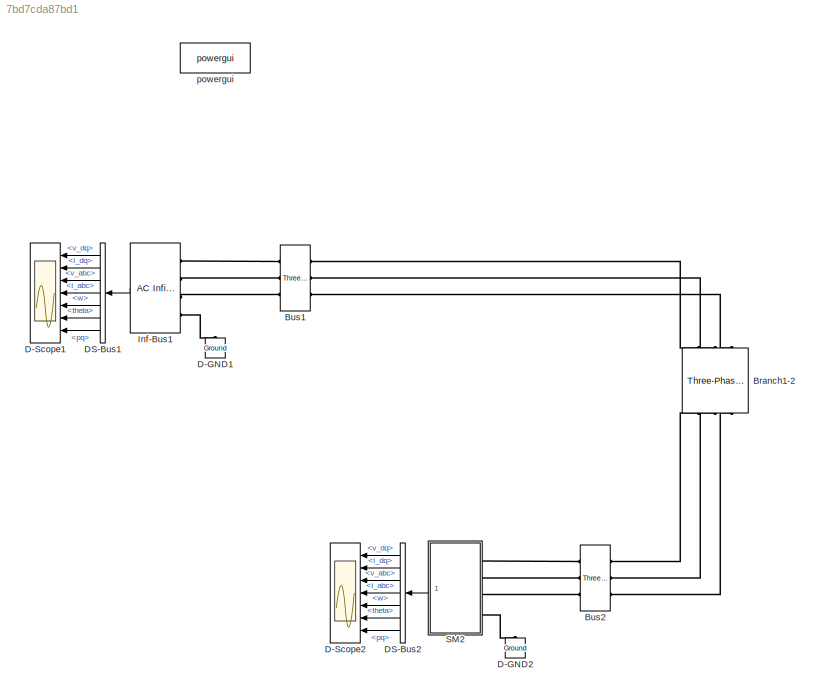
MODEL slx_7bd7cda87bd1
KIND model
CONFIG AbsTol = auto
CONFIG EnableMultiTasking = off
CONFIG FixedStep = Ts
CONFIG MaxStep = auto
CONFIG MinStep = auto
CONFIG RelTol = 1e-3
CONFIG SampleTimeConstraint = Unconstrained
CONFIG Solver = FixedStepAuto
CONFIG SolverName = FixedStepAuto
CONFIG StartTime = 0
CONFIG StopTime = 5
BLOCK [Reference] Branch1-2  REF=powerlib/Elements/Three-Phase
Series RLC Branch
  AttributesFormatString = \n
  Ports = [0, 0, 0, 0, 0, 3, 3]
  SourceBlock = powerlib/Elements/Three-Phase\nSeries RLC Branch
  SourceProductBaseCode = PS
  SourceProductName = Simscape Power Systems
  SourceType = Three-Phase Series RLC Branch
BLOCK [Reference] Bus1  REF=SimplexPS/Three-Phase Bus
  Ports = [0, 0, 0, 0, 0, 3, 3]
  SourceBlock = SimplexPS/Three-Phase Bus
  SourceProductName = Simplex Power System
BLOCK [Reference] Bus2  REF=SimplexPS/Three-Phase Bus
  Ports = [0, 0, 0, 0, 0, 3, 3]
  SourceBlock = SimplexPS/Three-Phase Bus
  SourceProductName = Simplex Power System
BLOCK [Reference] D-GND1  REF=powerlib/Elements/Ground
  Ports = [0, 0, 0, 0, 0, 1]
  SourceBlock = powerlib/Elements/Ground
  SourceProductBaseCode = PS
  SourceProductName = Simscape Power Systems
  SourceType = Ground
BLOCK [Reference] D-GND2  REF=powerlib/Elements/Ground
  Ports = [0, 0, 0, 0, 0, 1]
  SourceBlock = powerlib/Elements/Ground
  SourceProductBaseCode = PS
  SourceProductName = Simscape Power Systems
  SourceType = Ground
BLOCK [Scope] D-Scope1
  Floating = off
  NumInputPorts = 7
  Ports = [7]
  ScopeSpecificationString = Simulink.scopes.TimeScopeBlockCfg('CurrentConfiguration', extmgr.ConfigurationSet(extmgr.Configuration('Core','General UI',true),extmgr.Configuration('Core','Source UI',true),extmgr.Configuration('Sources','WiredSimulink',true),extmgr.Configuration('Visuals','Time Domain',true,'SerializedDisplays',{struct('MinYLimReal','-0.12437','MaxYLimReal','1.11938','YLabelReal','','MinYLimMag','0.00000','MaxY...<+5534ch>
BLOCK [Scope] D-Scope2
  Floating = off
  NumInputPorts = 7
  Ports = [7]
  ScopeSpecificationString = Simulink.scopes.TimeScopeBlockCfg('CurrentConfiguration', extmgr.ConfigurationSet(extmgr.Configuration('Core','General UI',true),extmgr.Configuration('Core','Source UI',true),extmgr.Configuration('Sources','WiredSimulink',true),extmgr.Configuration('Visuals','Time Domain',true,'SerializedDisplays',{struct('MinYLimReal','-2233.61403','MaxYLimReal','2236.2586','YLabelReal','','MinYLimMag','  0.00000...<+5702ch>
BLOCK [BusSelector] DS-Bus1
  OutputAsBus = off
  OutputSignals = v_dq,i_dq,v_abc,i_abc,w,theta,pq
  Ports = [1, 7]
BLOCK [BusSelector] DS-Bus2
  OutputAsBus = off
  OutputSignals = v_dq,i_dq,v_abc,i_abc,w,theta,pq
  Ports = [1, 7]
BLOCK [Reference] Inf-Bus1  REF=SimplexPS/AC Infinite Bus
(Voltage Type)
  Ports = [0, 1, 0, 0, 0, 4]
  SourceBlock = SimplexPS/AC Infinite Bus\n(Voltage Type)
  SourceProductName = Simplex Power System
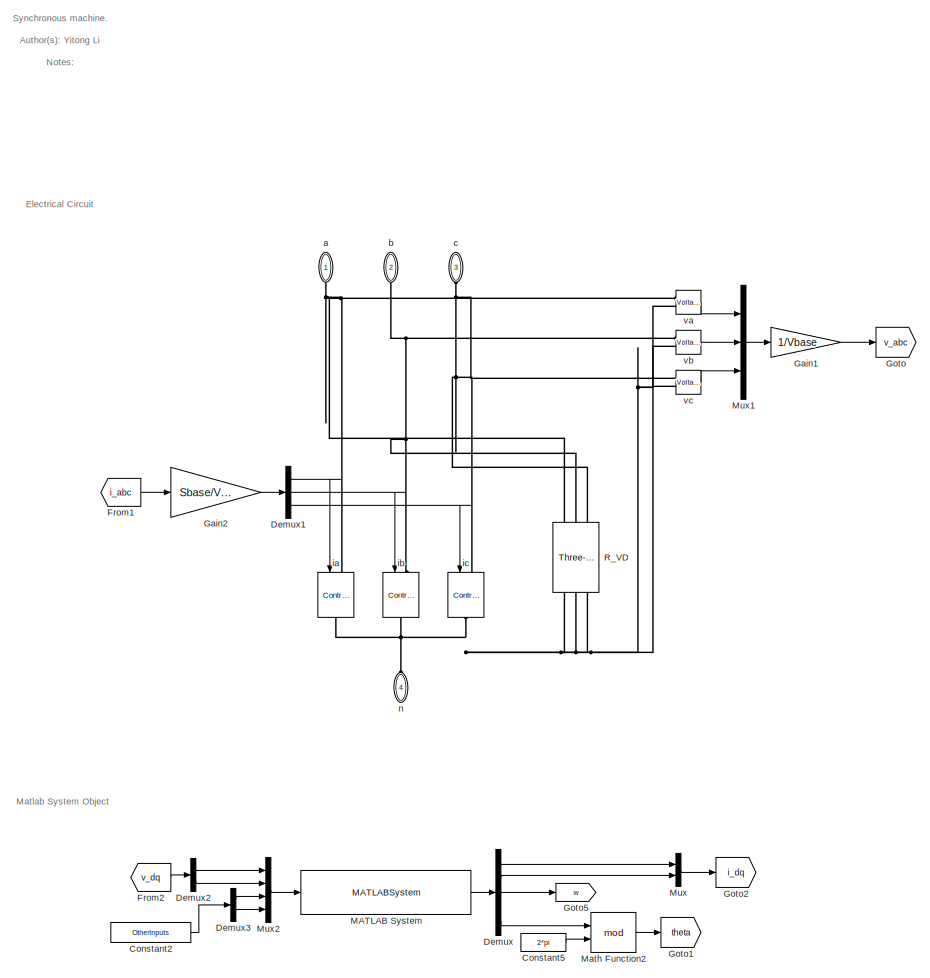
[diagram: SM2 - part 1/2, left side, full height]
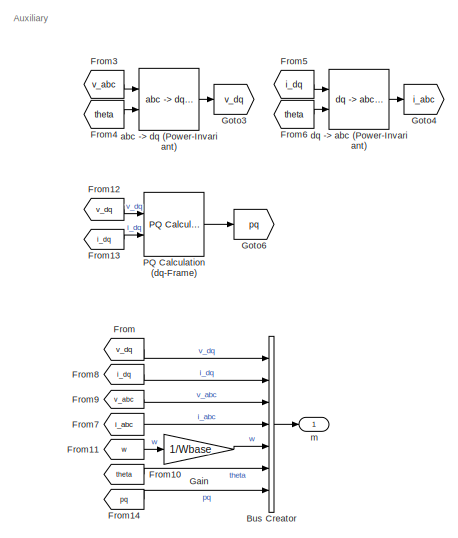
[diagram: SM2 - part 2/2, middle right region]
BLOCK [SubSystem] SM2
  AncestorBlock = SimplexPS/Synchronous Machine\n(dq-Frame System Object)
  Ports = [0, 1, 0, 0, 0, 4]
  RequestExecContextInheritance = off
BLOCK [BusCreator] SM2/Bus Creator
  DisplayOption = bar
  InheritFromInputs = on
  Inputs = 7
  Ports = [7, 1]
BLOCK [Constant] SM2/Constant2
  Value = OtherInputs
BLOCK [Constant] SM2/Constant5
  Value = 2*pi
BLOCK [Demux] SM2/Demux
  DisplayOption = bar
  Outputs = 5
  Ports = [1, 5]
BLOCK [Demux] SM2/Demux1
  DisplayOption = bar
  Outputs = 3
  Ports = [1, 3]
BLOCK [Demux] SM2/Demux2
  DisplayOption = bar
  Outputs = 2
  Ports = [1, 2]
BLOCK [Demux] SM2/Demux3
  DisplayOption = bar
  Outputs = 2
  Ports = [1, 2]
BLOCK [From] SM2/From
  GotoTag = v_dq
BLOCK [From] SM2/From1
  GotoTag = i_abc
BLOCK [From] SM2/From10
  GotoTag = theta
BLOCK [From] SM2/From11
  GotoTag = w
BLOCK [From] SM2/From12
  GotoTag = v_dq
BLOCK [From] SM2/From13
  GotoTag = i_dq
BLOCK [From] SM2/From14
  GotoTag = pq
BLOCK [From] SM2/From2
  GotoTag = v_dq
BLOCK [From] SM2/From3
  GotoTag = v_abc
BLOCK [From] SM2/From4
  GotoTag = theta
BLOCK [From] SM2/From5
  GotoTag = i_dq
BLOCK [From] SM2/From6
  GotoTag = theta
BLOCK [From] SM2/From7
  GotoTag = i_abc
BLOCK [From] SM2/From8
  GotoTag = i_dq
BLOCK [From] SM2/From9
  GotoTag = v_abc
BLOCK [Gain] SM2/Gain
  Gain = 1/Wbase
  OutDataTypeStr = Inherit: Inherit via internal rule
  ParamDataTypeStr = Inherit: Inherit via internal rule
  SaturateOnIntegerOverflow = off
BLOCK [Gain] SM2/Gain1
  Gain = 1/Vbase
  OutDataTypeStr = Inherit: Inherit via internal rule
  ParamDataTypeStr = Inherit: Inherit via internal rule
  SaturateOnIntegerOverflow = off
BLOCK [Gain] SM2/Gain2
  Gain = Sbase/Vbase
  OutDataTypeStr = Inherit: Inherit via internal rule
  ParamDataTypeStr = Inherit: Inherit via internal rule
  SaturateOnIntegerOverflow = off
BLOCK [Goto] SM2/Goto
  GotoTag = v_abc
BLOCK [Goto] SM2/Goto1
  GotoTag = theta
BLOCK [Goto] SM2/Goto2
  GotoTag = i_dq
BLOCK [Goto] SM2/Goto3
  GotoTag = v_dq
BLOCK [Goto] SM2/Goto4
  GotoTag = i_abc
BLOCK [Goto] SM2/Goto5
  GotoTag = w
BLOCK [Goto] SM2/Goto6
  GotoTag = pq
BLOCK [MATLABSystem] SM2/MATLAB System
  DeviceType = DeviceType
  DirectFeedthrough = DirectFeedthrough
  DiscreMethod = 1
  ElecPortIOs = [ 1, 2 ]
  EquiInitial = true
  LinearizationTimes = LinearizationTimes
  MaskDisplay = disp('SynchronousMachineStationary');\nport_label('input',1,'u');\nport_label('output',1,'y');
  MaskType = SimplexPS.Class.SynchronousMachineStationary
  Para = DevicePara
  Ports = [1, 1]
  PowerFlow = PowerFlow
  SimulateUsing = Code generation
  System = SimplexPS.Class.SynchronousMachineStationary
  Ts = Ts
  VirtualResistor = DiscreDampingFlag
  x0 = x0
BLOCK [Math] SM2/Math Function2
  Operator = mod
  Ports = [2, 1]
BLOCK [Mux] SM2/Mux
  DisplayOption = bar
  Inputs = 2
  Ports = [2, 1]
BLOCK [Mux] SM2/Mux1
  DisplayOption = bar
  Inputs = 3
  Ports = [3, 1]
BLOCK [Mux] SM2/Mux2
  DisplayOption = bar
  Ports = [4, 1]
BLOCK [Reference] SM2/PQ Calculation (dq-Frame)  REF=SimplexPS/PQ Calculation
(dq-Frame)
  Ports = [2, 1]
  SourceBlock = SimplexPS/PQ Calculation\n(dq-Frame)
  SourceProductName = Simplex Power System
BLOCK [Reference] SM2/R_VD  REF=powerlib/Elements/Three-Phase
Series RLC Branch
  AttributesFormatString = \n
  Ports = [0, 0, 0, 0, 0, 3, 3]
  SourceBlock = powerlib/Elements/Three-Phase\nSeries RLC Branch
  SourceProductBaseCode = PS
  SourceProductName = Simscape Power Systems
  SourceType = Three-Phase Series RLC Branch
BLOCK [PMIOPort] SM2/a
  Side = Left
BLOCK [Reference] SM2/abc -> dq (Power-Invariant)  REF=SimplexPS/abc -> dq
(Power-Invariant)
  Ports = [2, 1]
  SourceBlock = SimplexPS/abc -> dq\n(Power-Invariant)
  SourceProductName = Simplex Power System
BLOCK [PMIOPort] SM2/b
  Port = 2
  Side = Left
BLOCK [PMIOPort] SM2/c
  Port = 3
  Side = Left
BLOCK [Reference] SM2/dq -> abc (Power-Invariant)  REF=SimplexPS/dq -> abc
(Power-Invariant)
  Ports = [2, 1]
  SourceBlock = SimplexPS/dq -> abc\n(Power-Invariant)
  SourceProductName = Simplex Power System
BLOCK [Reference] SM2/ia  REF=powerlib/Electrical
Sources/Controlled Current Source
  Ports = [1, 0, 0, 0, 0, 1, 1]
  SourceBlock = powerlib/Electrical\nSources/Controlled Current Source
  SourceProductBaseCode = PS
  SourceProductName = Simscape Power Systems
  SourceType = Controlled Current Source
BLOCK [Reference] SM2/ib  REF=powerlib/Electrical
Sources/Controlled Current Source
  Ports = [1, 0, 0, 0, 0, 1, 1]
  SourceBlock = powerlib/Electrical\nSources/Controlled Current Source
  SourceProductBaseCode = PS
  SourceProductName = Simscape Power Systems
  SourceType = Controlled Current Source
BLOCK [Reference] SM2/ic  REF=powerlib/Electrical
Sources/Controlled Current Source
  Ports = [1, 0, 0, 0, 0, 1, 1]
  SourceBlock = powerlib/Electrical\nSources/Controlled Current Source
  SourceProductBaseCode = PS
  SourceProductName = Simscape Power Systems
  SourceType = Controlled Current Source
BLOCK [Outport] SM2/m
  IconDisplay = Port number
BLOCK [PMIOPort] SM2/n
  Port = 4
  Side = Left
BLOCK [Reference] SM2/va  REF=powerlib/Measurements/Voltage Measurement
  Ports = [0, 1, 0, 0, 0, 2]
  SourceBlock = powerlib/Measurements/Voltage Measurement
  SourceProductBaseCode = PS
  SourceProductName = Simscape Power Systems
  SourceType = Voltage Measurement
  UserDataPersistent = on
BLOCK [Reference] SM2/vb  REF=powerlib/Measurements/Voltage Measurement
  Ports = [0, 1, 0, 0, 0, 2]
  SourceBlock = powerlib/Measurements/Voltage Measurement
  SourceProductBaseCode = PS
  SourceProductName = Simscape Power Systems
  SourceType = Voltage Measurement
  UserDataPersistent = on
BLOCK [Reference] SM2/vc  REF=powerlib/Measurements/Voltage Measurement
  Ports = [0, 1, 0, 0, 0, 2]
  SourceBlock = powerlib/Measurements/Voltage Measurement
  SourceProductBaseCode = PS
  SourceProductName = Simscape Power Systems
  SourceType = Voltage Measurement
  UserDataPersistent = on
BLOCK [Reference] powergui  REF=powerlib/powergui
  Ports = []
  Priority = 1
  SourceBlock = powerlib/powergui
  SourceProductBaseCode = PS
  SourceProductName = Simscape Power Systems
  SourceType = PSB option menu block
ANNOTATION SM2: Auxiliary
ANNOTATION SM2: Electrical Circuit
ANNOTATION SM2: Matlab System Object
ANNOTATION SM2: Synchronous machine. Author(s): Yitong Li Notes: This model is based on matlab system object. The model is in load convention. The frame transformation between dq and abc is done by simulink blocks, i.e., outside the system object.
LINE DS-Bus1:1 -> D-Scope1:1
LINE DS-Bus1:2 -> D-Scope1:2
LINE DS-Bus1:3 -> D-Scope1:3
LINE DS-Bus1:4 -> D-Scope1:4
LINE DS-Bus1:5 -> D-Scope1:5
LINE DS-Bus1:6 -> D-Scope1:6
LINE DS-Bus1:7 -> D-Scope1:7
LINE DS-Bus2:1 -> D-Scope2:1
LINE DS-Bus2:2 -> D-Scope2:2
LINE DS-Bus2:3 -> D-Scope2:3
LINE DS-Bus2:4 -> D-Scope2:4
LINE DS-Bus2:5 -> D-Scope2:5
LINE DS-Bus2:6 -> D-Scope2:6
LINE DS-Bus2:7 -> D-Scope2:7
LINE Inf-Bus1:1 -> DS-Bus1:1
LINE SM2:1 -> DS-Bus2:1
PLINE Branch1-2:LConn1 -- Bus1:RConn1
PLINE Branch1-2:LConn2 -- Bus1:RConn2
PLINE Branch1-2:LConn3 -- Bus1:RConn3
PLINE Branch1-2:RConn1 -- Bus2:RConn1
PLINE Branch1-2:RConn2 -- Bus2:RConn2
PLINE Branch1-2:RConn3 -- Bus2:RConn3
PLINE Bus1:LConn1 -- Inf-Bus1:LConn1
PLINE Bus1:LConn2 -- Inf-Bus1:LConn2
PLINE Bus1:LConn3 -- Inf-Bus1:LConn3
PLINE Bus2:LConn1 -- SM2:LConn1
PLINE Bus2:LConn2 -- SM2:LConn2
PLINE Bus2:LConn3 -- SM2:LConn3
PLINE D-GND1:LConn1 -- Inf-Bus1:LConn4
PLINE D-GND2:LConn1 -- SM2:LConn4
